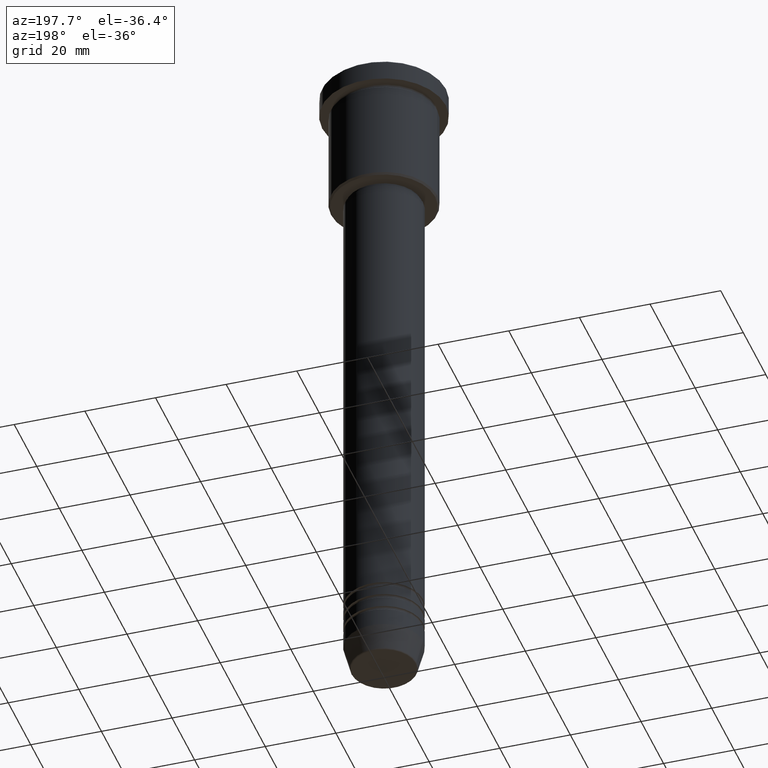
[diagram: clean part render]
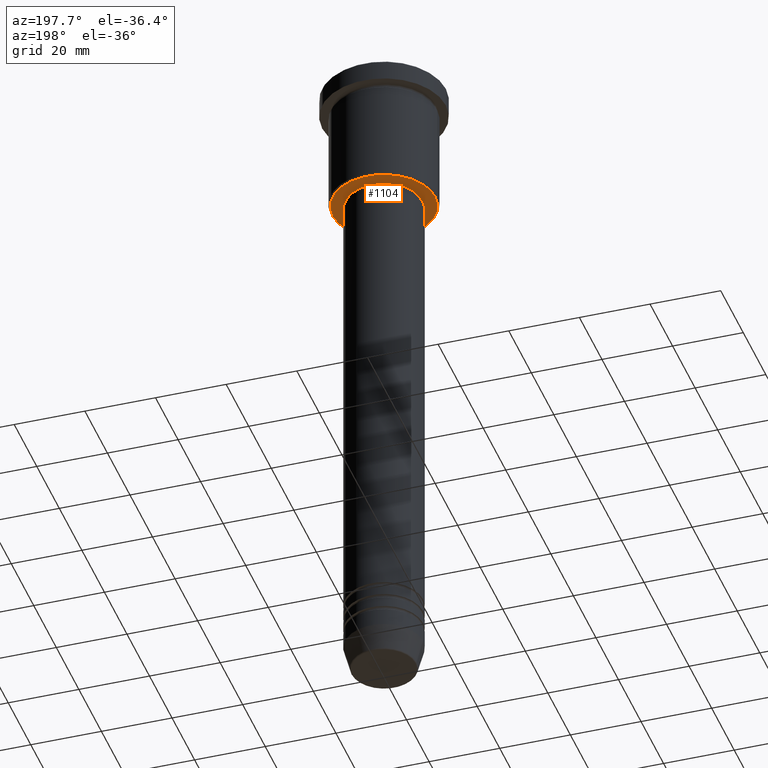
[diagram: same view with one face highlighted and labeled with its STEP entity id]
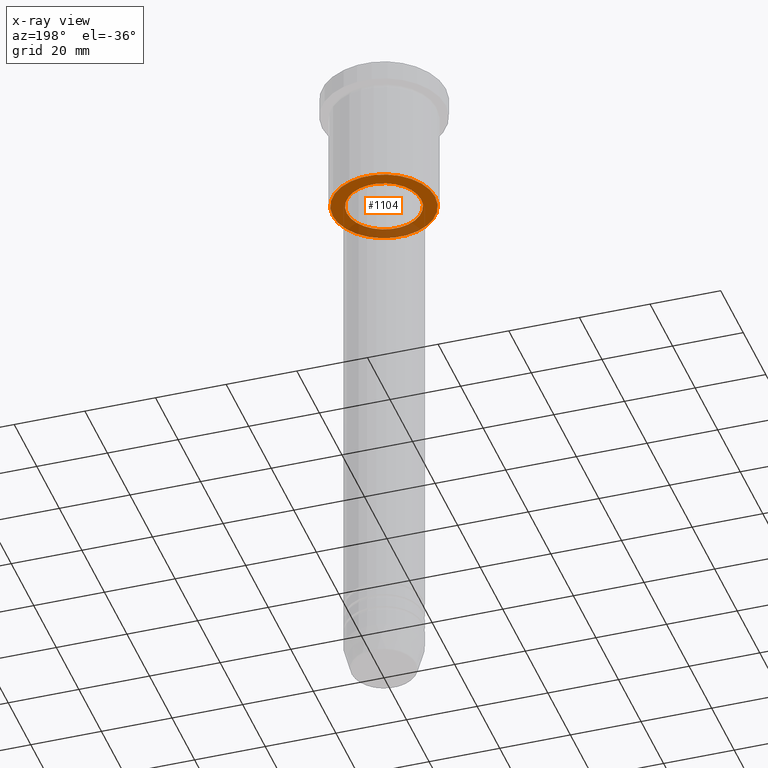
[diagram: x-ray of the same camera — body ghosted, the highlighted face saturated]
A machine part, auxiliary view. The second image highlights one B-rep face of the part: STEP entity #1104.
The next image is the same camera in x-ray: the body ghosted, the highlighted face saturated — about 24% of this face is hidden behind the body in this view.
In plain terms, the highlighted planar face has unit normal (0, 0, -1).
Its self-contained STEP definition (entity closure, byte-faithful):
#104 = DIRECTION ( 'NONE',  ( 1.000000000000000000, 0.000000000000000000, 0.000000000000000000 ) ) ;
#123 = EDGE_LOOP ( 'NONE', ( #938, #1101 ) ) ;
#133 = DIRECTION ( 'NONE',  ( 1.000000000000000000, 0.000000000000000000, 0.000000000000000000 ) ) ;
#151 = EDGE_CURVE ( 'NONE', #867, #663, #1008, .T. ) ;
#152 = AXIS2_PLACEMENT_3D ( 'NONE', #167, #350, #104 ) ;
#153 = CIRCLE ( 'NONE', #727, 10.49999999999999822 ) ;
#167 = CARTESIAN_POINT ( 'NONE',  ( 0.000000000000000000, 0.000000000000000000, -36.00000000000001421 ) ) ;
#213 = CARTESIAN_POINT ( 'NONE',  ( -14.50000000000001066, 1.806354028742346591E-15, -36.00000000000001421 ) ) ;
#259 = VERTEX_POINT ( 'NONE', #680 ) ;
#263 = VERTEX_POINT ( 'NONE', #213 ) ;
#274 = CARTESIAN_POINT ( 'NONE',  ( 10.49999999999999822, 0.000000000000000000, -36.00000000000001421 ) ) ;
#305 = EDGE_CURVE ( 'NONE', #663, #867, #153, .T. ) ;
#350 = DIRECTION ( 'NONE',  ( -0.000000000000000000, -0.000000000000000000, 1.000000000000000000 ) ) ;
#358 = DIRECTION ( 'NONE',  ( -1.000000000000000000, 0.000000000000000000, -0.000000000000000000 ) ) ;
#366 = EDGE_CURVE ( 'NONE', #259, #263, #443, .T. ) ;
#392 = ORIENTED_EDGE ( 'NONE', *, *, #486, .T. ) ;
#408 = AXIS2_PLACEMENT_3D ( 'NONE', #441, #806, #627 ) ;
#441 = CARTESIAN_POINT ( 'NONE',  ( 0.000000000000000000, 0.000000000000000000, -36.00000000000001421 ) ) ;
#443 = CIRCLE ( 'NONE', #632, 14.50000000000001066 ) ;
#468 = FACE_BOUND ( 'NONE', #123, .T. ) ;
#486 = EDGE_CURVE ( 'NONE', #263, #259, #520, .T. ) ;
#520 = CIRCLE ( 'NONE', #408, 14.50000000000001066 ) ;
#529 = DIRECTION ( 'NONE',  ( 0.000000000000000000, 0.000000000000000000, -1.000000000000000000 ) ) ;
#547 = PLANE ( 'NONE',  #562 ) ;
#562 = AXIS2_PLACEMENT_3D ( 'NONE', #815, #1177, #358 ) ;
#586 = CARTESIAN_POINT ( 'NONE',  ( 0.000000000000000000, 0.000000000000000000, -36.00000000000001421 ) ) ;
#622 = DIRECTION ( 'NONE',  ( -1.000000000000000000, 0.000000000000000000, 0.000000000000000000 ) ) ;
#627 = DIRECTION ( 'NONE',  ( -1.000000000000000000, 0.000000000000000000, 0.000000000000000000 ) ) ;
#632 = AXIS2_PLACEMENT_3D ( 'NONE', #586, #529, #622 ) ;
#636 = ORIENTED_EDGE ( 'NONE', *, *, #366, .T. ) ;
#663 = VERTEX_POINT ( 'NONE', #274 ) ;
#680 = CARTESIAN_POINT ( 'NONE',  ( 14.50000000000001066, 0.000000000000000000, -36.00000000000001421 ) ) ;
#727 = AXIS2_PLACEMENT_3D ( 'NONE', #1137, #754, #133 ) ;
#754 = DIRECTION ( 'NONE',  ( -0.000000000000000000, -0.000000000000000000, 1.000000000000000000 ) ) ;
#806 = DIRECTION ( 'NONE',  ( 0.000000000000000000, 0.000000000000000000, -1.000000000000000000 ) ) ;
#815 = CARTESIAN_POINT ( 'NONE',  ( 0.000000000000000000, 15.00000000000000000, -36.00000000000001421 ) ) ;
#831 = FACE_OUTER_BOUND ( 'NONE', #846, .T. ) ;
#846 = EDGE_LOOP ( 'NONE', ( #636, #392 ) ) ;
#867 = VERTEX_POINT ( 'NONE', #1060 ) ;
#938 = ORIENTED_EDGE ( 'NONE', *, *, #305, .T. ) ;
#1008 = CIRCLE ( 'NONE', #152, 10.49999999999999822 ) ;
#1060 = CARTESIAN_POINT ( 'NONE',  ( -10.49999999999999822, 1.285879139104720633E-15, -36.00000000000001421 ) ) ;
#1101 = ORIENTED_EDGE ( 'NONE', *, *, #151, .T. ) ;
#1104 = ADVANCED_FACE ( 'NONE', ( #831, #468 ), #547, .T. ) ;
#1137 = CARTESIAN_POINT ( 'NONE',  ( 0.000000000000000000, 0.000000000000000000, -36.00000000000001421 ) ) ;
#1177 = DIRECTION ( 'NONE',  ( 0.000000000000000000, 0.000000000000000000, -1.000000000000000000 ) ) ;